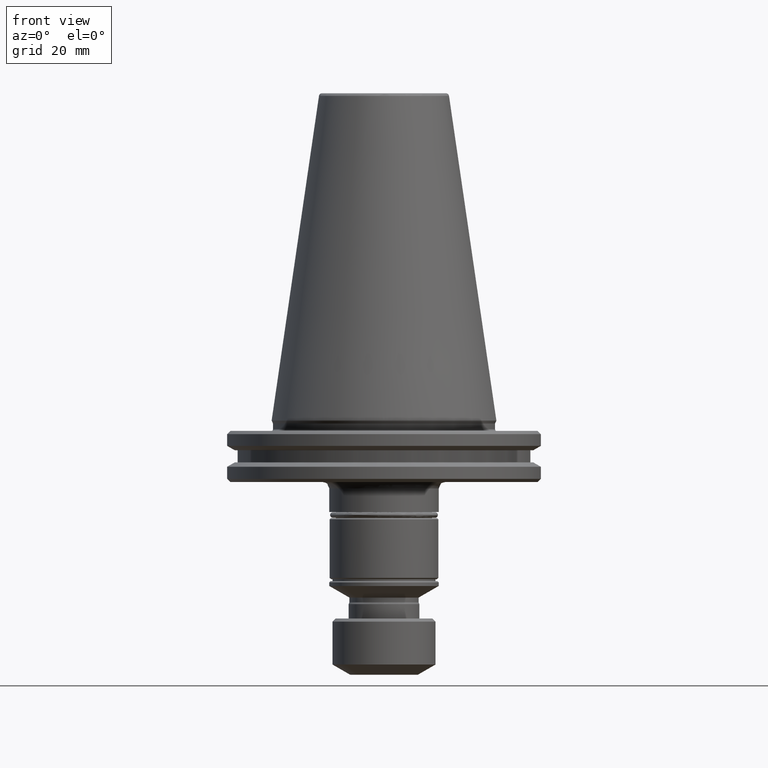
[diagram: clean part render]
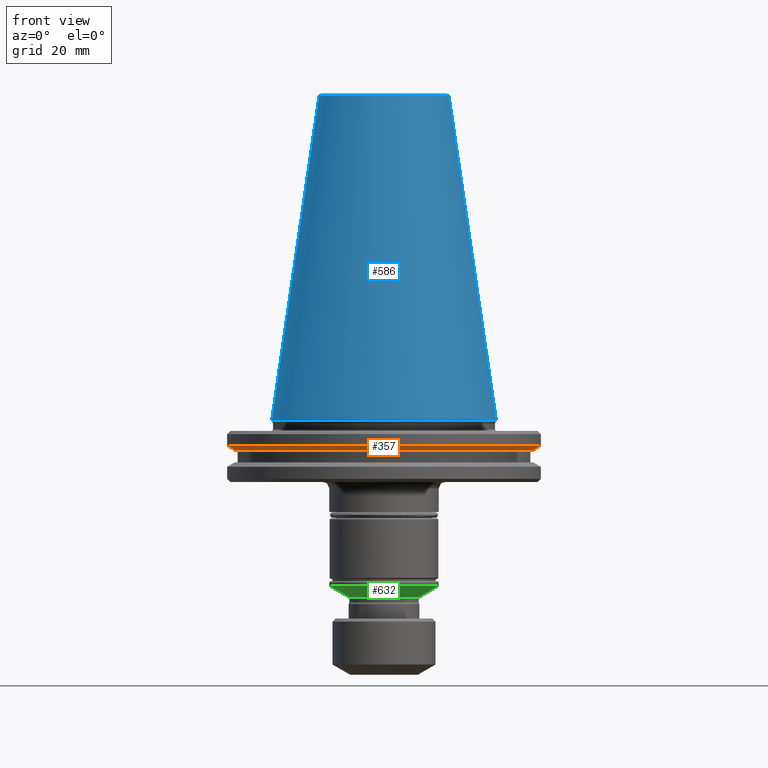
[diagram: same view with three faces highlighted in distinct colors, each labeled with its STEP entity id]
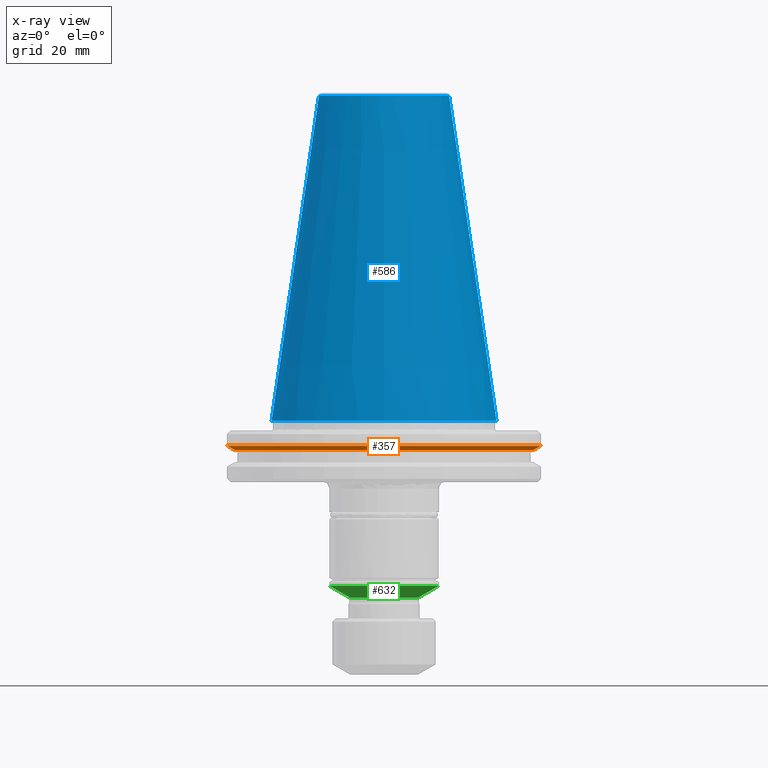
[diagram: x-ray of the same camera — body ghosted, the three highlighted faces saturated]
A machine part, front view with three faces highlighted in distinct colors.
The next image is the same camera in x-ray (body ghosted, the three faces saturated) — at least one of them is partly hidden behind the body in this view.
Their STEP definitions:

[orange] entity #357 — the highlighted conical surface has half-angle 60 deg.
#31 = CARTESIAN_POINT ( 'NONE',  ( 48.75000000000000000, 0.0000000000000000000, -7.852404735808352000 ) ) ;
#149 = AXIS2_PLACEMENT_3D ( 'NONE', #210, #205, #199 ) ;
#199 = DIRECTION ( 'NONE',  ( 1.000000000000000000, 0.0000000000000000000, 0.0000000000000000000 ) ) ;
#205 = DIRECTION ( 'NONE',  ( 0.0000000000000000000, 0.0000000000000000000, 1.000000000000000000 ) ) ;
#210 = CARTESIAN_POINT ( 'NONE',  ( 0.0000000000000000000, 0.0000000000000000000, -7.852404735808352000 ) ) ;
#257 = EDGE_CURVE ( 'NONE', #461, #1898, #2079, .T. ) ;
#316 = EDGE_CURVE ( 'NONE', #1898, #1754, #1135, .T. ) ;
#357 = ADVANCED_FACE ( 'NONE', ( #1458 ), #1444, .T. ) ;
#461 = VERTEX_POINT ( 'NONE', #839 ) ;
#611 = DIRECTION ( 'NONE',  ( 0.8660254037844377100, 0.0000000000000000000, 0.5000000000000016700 ) ) ;
#629 = CARTESIAN_POINT ( 'NONE',  ( 48.75000000000000700, 0.0000000000000000000, -7.852404735808348400 ) ) ;
#766 = EDGE_LOOP ( 'NONE', ( #1288, #1252, #1318, #1935 ) ) ;
#839 = CARTESIAN_POINT ( 'NONE',  ( 46.37259526419179400, 0.0000000000000000000, -9.224999999999926800 ) ) ;
#1135 = LINE ( 'NONE', #2468, #2292 ) ;
#1252 = ORIENTED_EDGE ( 'NONE', *, *, #257, .F. ) ;
#1286 = VECTOR ( 'NONE', #611, 1000.000000000000000 ) ;
#1288 = ORIENTED_EDGE ( 'NONE', *, *, #316, .F. ) ;
#1291 = CARTESIAN_POINT ( 'NONE',  ( -46.37259526419179400, 5.824579090844083400E-015, -9.224999999999926800 ) ) ;
#1318 = ORIENTED_EDGE ( 'NONE', *, *, #1968, .T. ) ;
#1348 = DIRECTION ( 'NONE',  ( -1.000000000000000000, 0.0000000000000000000, 0.0000000000000000000 ) ) ;
#1444 = CONICAL_SURFACE ( 'NONE', #2208, 48.75000000000000700, 1.047197551196595900 ) ;
#1458 = FACE_OUTER_BOUND ( 'NONE', #766, .T. ) ;
#1476 = DIRECTION ( 'NONE',  ( -0.8660254037844377100, 1.060575238724905800E-016, 0.5000000000000016700 ) ) ;
#1528 = DIRECTION ( 'NONE',  ( 0.0000000000000000000, 0.0000000000000000000, 1.000000000000000000 ) ) ;
#1670 = DIRECTION ( 'NONE',  ( -0.0000000000000000000, -0.0000000000000000000, -1.000000000000000000 ) ) ;
#1734 = CARTESIAN_POINT ( 'NONE',  ( -48.75000000000000000, 5.970153145843347100E-015, -7.852404735808352000 ) ) ;
#1754 = VERTEX_POINT ( 'NONE', #1734 ) ;
#1898 = VERTEX_POINT ( 'NONE', #1291 ) ;
#1935 = ORIENTED_EDGE ( 'NONE', *, *, #2081, .F. ) ;
#1968 = EDGE_CURVE ( 'NONE', #461, #2133, #2217, .T. ) ;
#1975 = CARTESIAN_POINT ( 'NONE',  ( 0.0000000000000000000, 0.0000000000000000000, -7.852404735808348400 ) ) ;
#2012 = DIRECTION ( 'NONE',  ( 1.000000000000000000, 0.0000000000000000000, 0.0000000000000000000 ) ) ;
#2079 = CIRCLE ( 'NONE', #2389, 46.37259526419179400 ) ;
#2081 = EDGE_CURVE ( 'NONE', #1754, #2133, #2486, .T. ) ;
#2133 = VERTEX_POINT ( 'NONE', #31 ) ;
#2181 = CARTESIAN_POINT ( 'NONE',  ( 0.0000000000000000000, 0.0000000000000000000, -9.224999999999926800 ) ) ;
#2208 = AXIS2_PLACEMENT_3D ( 'NONE', #1975, #1528, #2012 ) ;
#2217 = LINE ( 'NONE', #629, #1286 ) ;
#2292 = VECTOR ( 'NONE', #1476, 1000.000000000000000 ) ;
#2389 = AXIS2_PLACEMENT_3D ( 'NONE', #2181, #1670, #1348 ) ;
#2468 = CARTESIAN_POINT ( 'NONE',  ( -48.75000000000000700, 5.970153145843347900E-015, -7.852404735808348400 ) ) ;
#2486 = CIRCLE ( 'NONE', #149, 48.75000000000000000 ) ;

[blue] entity #586 — the highlighted conical surface has half-angle 8.297 deg.
#50 = EDGE_CURVE ( 'NONE', #297, #1157, #2412, .T. ) ;
#297 = VERTEX_POINT ( 'NONE', #1550 ) ;
#377 = LINE ( 'NONE', #1628, #2308 ) ;
#381 = DIRECTION ( 'NONE',  ( -1.000000000000000000, 0.0000000000000000000, 0.0000000000000000000 ) ) ;
#386 = DIRECTION ( 'NONE',  ( 0.0000000000000000000, 0.0000000000000000000, -1.000000000000000000 ) ) ;
#414 = CARTESIAN_POINT ( 'NONE',  ( 0.0000000000000000000, 0.0000000000000000000, 100.8943082272673000 ) ) ;
#432 = VERTEX_POINT ( 'NONE', #924 ) ;
#456 = CARTESIAN_POINT ( 'NONE',  ( 34.92499999999999700, 4.277078946022130900E-015, -1.387778780781445700E-014 ) ) ;
#586 = ADVANCED_FACE ( 'NONE', ( #1755 ), #1816, .T. ) ;
#814 = ORIENTED_EDGE ( 'NONE', *, *, #1529, .T. ) ;
#847 = DIRECTION ( 'NONE',  ( 0.0000000000000000000, 0.0000000000000000000, -1.000000000000000000 ) ) ;
#854 = DIRECTION ( 'NONE',  ( -1.000000000000000000, 0.0000000000000000000, 0.0000000000000000000 ) ) ;
#895 = VERTEX_POINT ( 'NONE', #2053 ) ;
#924 = CARTESIAN_POINT ( 'NONE',  ( -20.21110778703758000, 0.0000000000000000000, 100.8943082272673000 ) ) ;
#997 = CARTESIAN_POINT ( 'NONE',  ( 34.92499999999999700, 4.277078946022130900E-015, 0.0000000000000000000 ) ) ;
#1000 = EDGE_CURVE ( 'NONE', #432, #297, #377, .T. ) ;
#1105 = AXIS2_PLACEMENT_3D ( 'NONE', #2476, #847, #854 ) ;
#1157 = VERTEX_POINT ( 'NONE', #997 ) ;
#1171 = CIRCLE ( 'NONE', #1422, 20.21110778703758000 ) ;
#1264 = ORIENTED_EDGE ( 'NONE', *, *, #1000, .T. ) ;
#1311 = DIRECTION ( 'NONE',  ( -0.0000000000000000000, -0.0000000000000000000, 1.000000000000000000 ) ) ;
#1335 = ORIENTED_EDGE ( 'NONE', *, *, #50, .T. ) ;
#1422 = AXIS2_PLACEMENT_3D ( 'NONE', #414, #386, #381 ) ;
#1504 = AXIS2_PLACEMENT_3D ( 'NONE', #2055, #1311, #2256 ) ;
#1529 = EDGE_CURVE ( 'NONE', #895, #432, #1171, .T. ) ;
#1549 = VECTOR ( 'NONE', #1574, 1000.000000000000000 ) ;
#1550 = CARTESIAN_POINT ( 'NONE',  ( -34.92499999999999700, 0.0000000000000000000, 0.0000000000000000000 ) ) ;
#1574 = DIRECTION ( 'NONE',  ( 0.1443082272673069400, 1.767266086135362400E-017, -0.9895327864921743500 ) ) ;
#1628 = CARTESIAN_POINT ( 'NONE',  ( -34.92499999999999700, 0.0000000000000000000, -1.387778780781445700E-014 ) ) ;
#1630 = DIRECTION ( 'NONE',  ( -0.1443082272673069400, 0.0000000000000000000, -0.9895327864921743500 ) ) ;
#1755 = FACE_OUTER_BOUND ( 'NONE', #2093, .T. ) ;
#1816 = CONICAL_SURFACE ( 'NONE', #1105, 34.92499999999999700, 0.1448138465474189400 ) ;
#1844 = ORIENTED_EDGE ( 'NONE', *, *, #2139, .F. ) ;
#2053 = CARTESIAN_POINT ( 'NONE',  ( 20.21110778703758000, 3.376112895941951000E-015, 100.8943082272673000 ) ) ;
#2055 = CARTESIAN_POINT ( 'NONE',  ( 0.0000000000000000000, 0.0000000000000000000, 0.0000000000000000000 ) ) ;
#2093 = EDGE_LOOP ( 'NONE', ( #1844, #814, #1264, #1335 ) ) ;
#2139 = EDGE_CURVE ( 'NONE', #895, #1157, #2421, .T. ) ;
#2256 = DIRECTION ( 'NONE',  ( -1.000000000000000000, 0.0000000000000000000, 0.0000000000000000000 ) ) ;
#2308 = VECTOR ( 'NONE', #1630, 1000.000000000000000 ) ;
#2412 = CIRCLE ( 'NONE', #1504, 34.92499999999999700 ) ;
#2421 = LINE ( 'NONE', #456, #1549 ) ;
#2476 = CARTESIAN_POINT ( 'NONE',  ( 0.0000000000000000000, 0.0000000000000000000, -1.387778780781445700E-014 ) ) ;

[green] entity #632 — the highlighted conical surface has half-angle 60 deg.
#89 = ORIENTED_EDGE ( 'NONE', *, *, #1668, .F. ) ;
#248 = CIRCLE ( 'NONE', #1130, 10.75000000000000000 ) ;
#335 = ORIENTED_EDGE ( 'NONE', *, *, #2010, .F. ) ;
#353 = CONICAL_SURFACE ( 'NONE', #992, 17.00000000000000400, 1.047197551196595000 ) ;
#412 = DIRECTION ( 'NONE',  ( -0.8660254037844372600, 1.060575238724905200E-016, 0.5000000000000024400 ) ) ;
#424 = CARTESIAN_POINT ( 'NONE',  ( -17.00000000000000400, 2.081899558550500700E-015, -51.40000000000001300 ) ) ;
#462 = EDGE_LOOP ( 'NONE', ( #335, #1094, #2265, #89 ) ) ;
#590 = DIRECTION ( 'NONE',  ( 1.000000000000000000, 0.0000000000000000000, 0.0000000000000000000 ) ) ;
#596 = CARTESIAN_POINT ( 'NONE',  ( 0.0000000000000000000, 0.0000000000000000000, -51.40000000000001300 ) ) ;
#615 = DIRECTION ( 'NONE',  ( 0.0000000000000000000, -0.0000000000000000000, 1.000000000000000000 ) ) ;
#621 = CARTESIAN_POINT ( 'NONE',  ( -17.00000000000000400, 2.081899558550500700E-015, -51.40000000000001300 ) ) ;
#632 = ADVANCED_FACE ( 'NONE', ( #721 ), #353, .T. ) ;
#721 = FACE_OUTER_BOUND ( 'NONE', #462, .T. ) ;
#758 = CARTESIAN_POINT ( 'NONE',  ( 17.00000000000000400, 0.0000000000000000000, -51.40000000000001300 ) ) ;
#795 = VECTOR ( 'NONE', #1249, 1000.000000000000000 ) ;
#926 = EDGE_CURVE ( 'NONE', #2161, #2475, #248, .T. ) ;
#992 = AXIS2_PLACEMENT_3D ( 'NONE', #596, #615, #590 ) ;
#1094 = ORIENTED_EDGE ( 'NONE', *, *, #926, .T. ) ;
#1130 = AXIS2_PLACEMENT_3D ( 'NONE', #1990, #1986, #1960 ) ;
#1249 = DIRECTION ( 'NONE',  ( 0.8660254037844372600, 0.0000000000000000000, 0.5000000000000024400 ) ) ;
#1313 = LINE ( 'NONE', #758, #795 ) ;
#1407 = DIRECTION ( 'NONE',  ( 1.000000000000000000, 0.0000000000000000000, 0.0000000000000000000 ) ) ;
#1410 = DIRECTION ( 'NONE',  ( 0.0000000000000000000, 0.0000000000000000000, 1.000000000000000000 ) ) ;
#1423 = CARTESIAN_POINT ( 'NONE',  ( 0.0000000000000000000, 0.0000000000000000000, -51.40000000000001300 ) ) ;
#1668 = EDGE_CURVE ( 'NONE', #2302, #2423, #2249, .T. ) ;
#1878 = CARTESIAN_POINT ( 'NONE',  ( -10.75000000000000000, 1.316495309083404800E-015, -55.00843918243520400 ) ) ;
#1913 = LINE ( 'NONE', #424, #2125 ) ;
#1960 = DIRECTION ( 'NONE',  ( 1.000000000000000000, 0.0000000000000000000, 0.0000000000000000000 ) ) ;
#1986 = DIRECTION ( 'NONE',  ( 0.0000000000000000000, 0.0000000000000000000, 1.000000000000000000 ) ) ;
#1990 = CARTESIAN_POINT ( 'NONE',  ( 0.0000000000000000000, 0.0000000000000000000, -55.00843918243520400 ) ) ;
#2010 = EDGE_CURVE ( 'NONE', #2161, #2302, #1913, .T. ) ;
#2125 = VECTOR ( 'NONE', #412, 1000.000000000000000 ) ;
#2126 = CARTESIAN_POINT ( 'NONE',  ( 10.75000000000000000, 0.0000000000000000000, -55.00843918243520400 ) ) ;
#2161 = VERTEX_POINT ( 'NONE', #1878 ) ;
#2214 = EDGE_CURVE ( 'NONE', #2475, #2423, #1313, .T. ) ;
#2249 = CIRCLE ( 'NONE', #2313, 17.00000000000000000 ) ;
#2265 = ORIENTED_EDGE ( 'NONE', *, *, #2214, .T. ) ;
#2302 = VERTEX_POINT ( 'NONE', #621 ) ;
#2313 = AXIS2_PLACEMENT_3D ( 'NONE', #1423, #1410, #1407 ) ;
#2346 = CARTESIAN_POINT ( 'NONE',  ( 17.00000000000000400, 0.0000000000000000000, -51.40000000000001300 ) ) ;
#2423 = VERTEX_POINT ( 'NONE', #2346 ) ;
#2475 = VERTEX_POINT ( 'NONE', #2126 ) ;